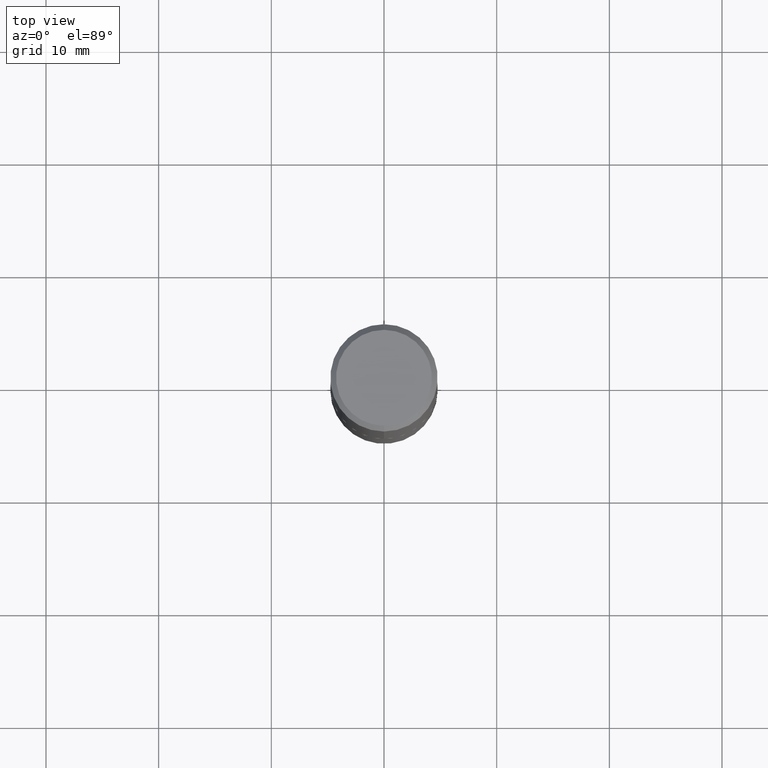
[diagram: clean part render]
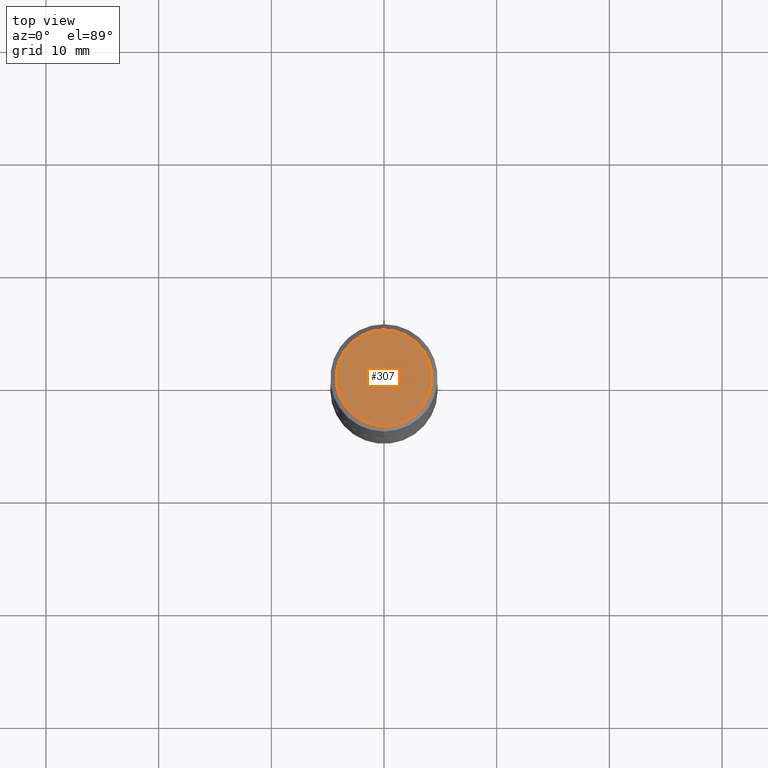
[diagram: same view with one face highlighted and labeled with its STEP entity id]
A machine part, top view. The second image highlights one B-rep face of the part: STEP entity #307.
In plain terms, the highlighted planar face has unit normal (0, -0, -1).
Its self-contained STEP definition (entity closure, byte-faithful):
#18 = DIRECTION ( 'NONE',  ( -6.982962677686266711E-15, -1.000000000000000000, 3.492448262817002274E-15 ) ) ;
#51 = DIRECTION ( 'NONE',  ( 6.982962677686265922E-15, 1.000000000000000000, -3.492448262817002669E-15 ) ) ;
#56 = FACE_OUTER_BOUND ( 'NONE', #117, .T. ) ;
#63 = CARTESIAN_POINT ( 'NONE',  ( 1.239475875289311907E-15, 0.1674999999999998157, -4.098141121621095221E-16 ) ) ;
#68 = DIRECTION ( 'NONE',  ( -2.444793606782976109E-29, 3.492448262817002669E-15, 1.000000000000000000 ) ) ;
#73 = VERTEX_POINT ( 'NONE', #63 ) ;
#86 = AXIS2_PLACEMENT_3D ( 'NONE', #175, #286, #51 ) ;
#91 = AXIS2_PLACEMENT_3D ( 'NONE', #297, #68, #132 ) ;
#117 = EDGE_LOOP ( 'NONE', ( #278, #185 ) ) ;
#121 = VERTEX_POINT ( 'NONE', #223 ) ;
#132 = DIRECTION ( 'NONE',  ( -6.982962677686266711E-15, -1.000000000000000000, 3.492448262817002274E-15 ) ) ;
#166 = EDGE_CURVE ( 'NONE', #73, #121, #343, .T. ) ;
#175 = CARTESIAN_POINT ( 'NONE',  ( 1.169646248512448412E-15, 0.1674999999999998157, -4.973995980919783120E-16 ) ) ;
#185 = ORIENTED_EDGE ( 'NONE', *, *, #398, .T. ) ;
#209 = CIRCLE ( 'NONE', #242, 0.1674999999999998157 ) ;
#223 = CARTESIAN_POINT ( 'NONE',  ( -1.217738394604445850E-15, -0.1674999999999998157, 7.601560558815852241E-16 ) ) ;
#242 = AXIS2_PLACEMENT_3D ( 'NONE', #409, #374, #18 ) ;
#278 = ORIENTED_EDGE ( 'NONE', *, *, #166, .T. ) ;
#286 = DIRECTION ( 'NONE',  ( 2.444793606782975829E-29, -3.492448262817002669E-15, -1.000000000000000000 ) ) ;
#297 = CARTESIAN_POINT ( 'NONE',  ( -4.282568720966478871E-45, 6.117755563675076877E-31, 1.751709718597379003E-16 ) ) ;
#307 = ADVANCED_FACE ( 'NONE', ( #56 ), #311, .F. ) ;
#311 = PLANE ( 'NONE',  #86 ) ;
#343 = CIRCLE ( 'NONE', #91, 0.1674999999999998157 ) ;
#374 = DIRECTION ( 'NONE',  ( -2.444793606782976109E-29, 3.492448262817002669E-15, 1.000000000000000000 ) ) ;
#398 = EDGE_CURVE ( 'NONE', #121, #73, #209, .T. ) ;
#409 = CARTESIAN_POINT ( 'NONE',  ( -4.282568720966478871E-45, 6.117755563675076877E-31, 1.751709718597379003E-16 ) ) ;